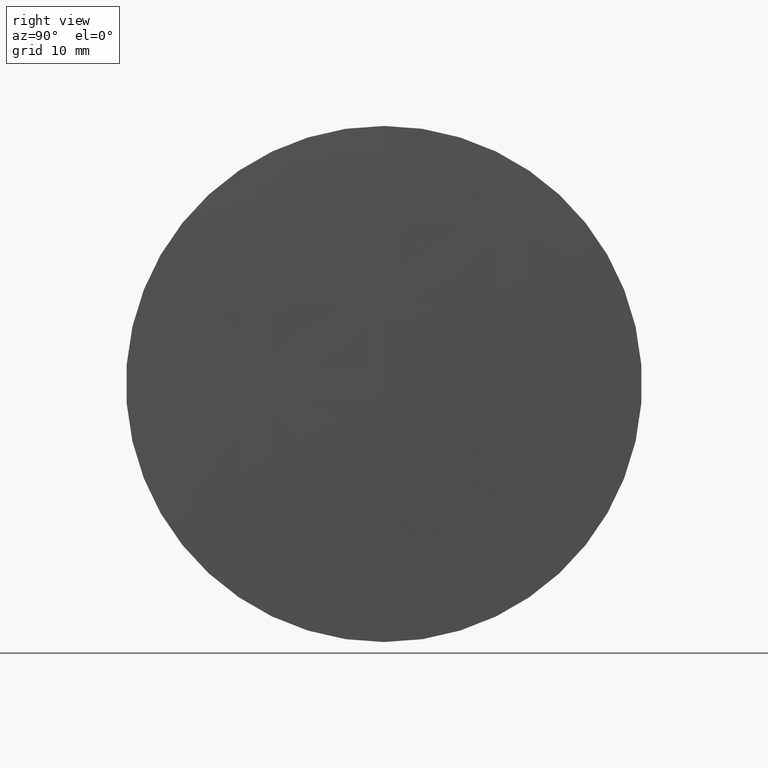
[diagram: clean part render]
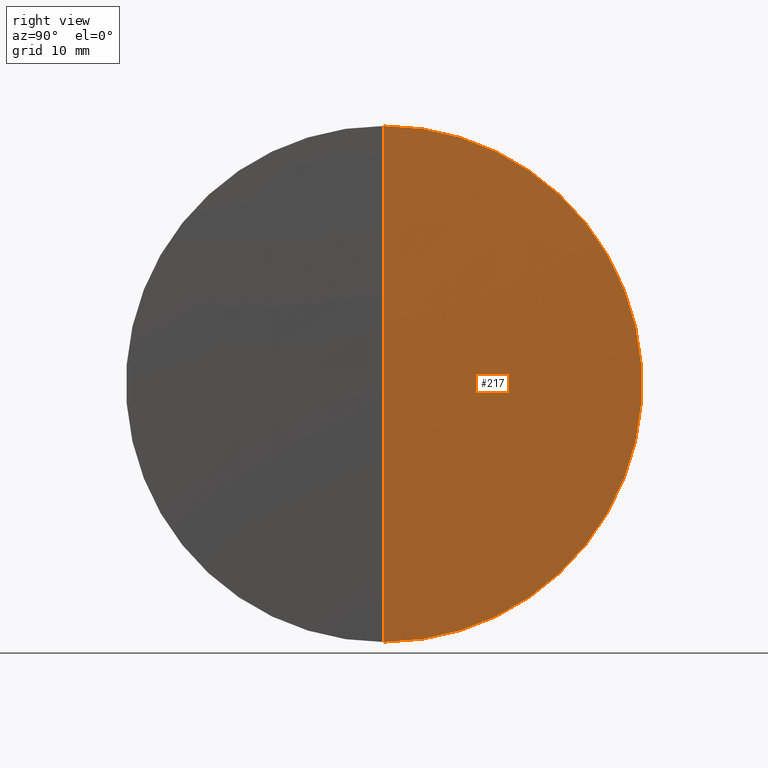
[diagram: same view with one face highlighted and labeled with its STEP entity id]
A machine part, right view. The second image highlights one B-rep face of the part: STEP entity #217.
In plain terms, the highlighted spherical surface has radius 1023.3 mm.
Its self-contained STEP definition (entity closure, byte-faithful):
#21 = AXIS2_PLACEMENT_3D ( 'NONE', #233, #176, #120 ) ;
#22 = CARTESIAN_POINT ( 'NONE',  ( 616.2215759061234600, 0.0000000000000000000, 6.265905347837432300E-014 ) ) ;
#31 = CARTESIAN_POINT ( 'NONE',  ( 615.9062923119943200, 0.0000000000000000000, 25.39999999999895800 ) ) ;
#51 = CIRCLE ( 'NONE', #109, 1023.299999999999800 ) ;
#52 = EDGE_LOOP ( 'NONE', ( #187, #113, #225 ) ) ;
#61 = CIRCLE ( 'NONE', #74, 1023.299999999999800 ) ;
#74 = AXIS2_PLACEMENT_3D ( 'NONE', #200, #123, #289 ) ;
#75 = VERTEX_POINT ( 'NONE', #31 ) ;
#105 = DIRECTION ( 'NONE',  ( 0.0000000000000000000, -1.000000000000000000, 0.0000000000000000000 ) ) ;
#109 = AXIS2_PLACEMENT_3D ( 'NONE', #262, #105, #152 ) ;
#113 = ORIENTED_EDGE ( 'NONE', *, *, #254, .T. ) ;
#120 = DIRECTION ( 'NONE',  ( 0.0000000000000000000, 0.0000000000000000000, 1.000000000000000000 ) ) ;
#123 = DIRECTION ( 'NONE',  ( -0.0000000000000000000, 1.000000000000000000, 1.224646799147353200E-016 ) ) ;
#139 = SPHERICAL_SURFACE ( 'NONE', #21, 1023.299999999999800 ) ;
#148 = VERTEX_POINT ( 'NONE', #221 ) ;
#150 = DIRECTION ( 'NONE',  ( -1.000000000000000000, -0.0000000000000000000, -0.0000000000000000000 ) ) ;
#152 = DIRECTION ( 'NONE',  ( 0.0000000000000000000, 0.0000000000000000000, -1.000000000000000000 ) ) ;
#176 = DIRECTION ( 'NONE',  ( 0.0000000000000000000, 1.000000000000000000, 0.0000000000000000000 ) ) ;
#187 = ORIENTED_EDGE ( 'NONE', *, *, #274, .F. ) ;
#195 = VERTEX_POINT ( 'NONE', #22 ) ;
#200 = CARTESIAN_POINT ( 'NONE',  ( -407.0784240938763800, 0.0000000000000000000, 0.0000000000000000000 ) ) ;
#216 = EDGE_CURVE ( 'NONE', #75, #148, #279, .T. ) ;
#217 = ADVANCED_FACE ( 'NONE', ( #281 ), #139, .T. ) ;
#221 = CARTESIAN_POINT ( 'NONE',  ( 615.9062923119943200, 3.110602869834161700E-015, -25.39999999999895800 ) ) ;
#225 = ORIENTED_EDGE ( 'NONE', *, *, #216, .F. ) ;
#233 = CARTESIAN_POINT ( 'NONE',  ( -407.0784240938763800, 0.0000000000000000000, 0.0000000000000000000 ) ) ;
#254 = EDGE_CURVE ( 'NONE', #195, #148, #61, .T. ) ;
#262 = CARTESIAN_POINT ( 'NONE',  ( -407.0784240938763800, 0.0000000000000000000, 0.0000000000000000000 ) ) ;
#274 = EDGE_CURVE ( 'NONE', #195, #75, #51, .T. ) ;
#279 = CIRCLE ( 'NONE', #333, 25.39999999999895800 ) ;
#281 = FACE_OUTER_BOUND ( 'NONE', #52, .T. ) ;
#289 = DIRECTION ( 'NONE',  ( 0.0000000000000000000, -1.224646799147353200E-016, 1.000000000000000000 ) ) ;
#310 = DIRECTION ( 'NONE',  ( 0.0000000000000000000, 0.0000000000000000000, 1.000000000000000000 ) ) ;
#333 = AXIS2_PLACEMENT_3D ( 'NONE', #339, #150, #310 ) ;
#339 = CARTESIAN_POINT ( 'NONE',  ( 615.9062923119943200, 0.0000000000000000000, 0.0000000000000000000 ) ) ;